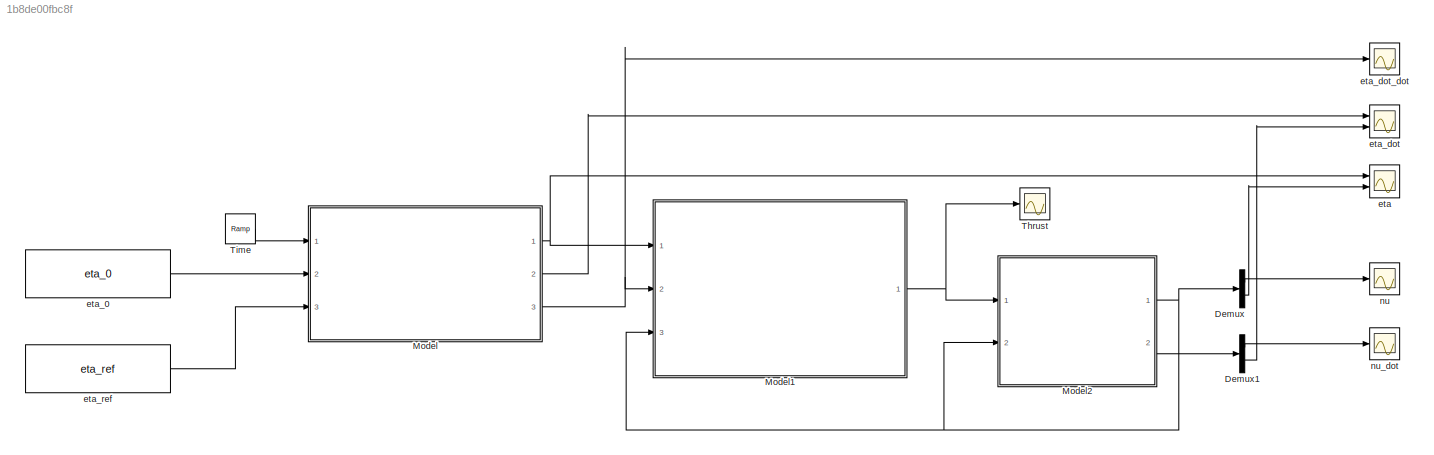
MODEL slx_1b8de00fbc8f
KIND model
CONFIG AbsTol = auto
CONFIG EnableMultiTasking = off
CONFIG FixedStep = auto
CONFIG MaxStep = auto
CONFIG MinStep = auto
CONFIG RelTol = 1e-3
CONFIG SampleTimeConstraint = Unconstrained
CONFIG Solver = VariableStepAuto
CONFIG SolverName = VariableStepAuto
CONFIG StartTime = 0.0
CONFIG StopTime = 120
BLOCK [Demux] Demux
  DisplayOption = bar
  Outputs = [6,6]
  Ports = [1, 2]
BLOCK [Demux] Demux1
  DisplayOption = bar
  Outputs = [6,6]
  Ports = [1, 2]
BLOCK [ModelReference] Model
  ModelNameDialog = trajectory_planner.slx
  ModelReferenceVersion = 1.30
  Ports = [3, 3]
BLOCK [ModelReference] Model1
  ModelNameDialog = controller.slx
  ModelReferenceVersion = 1.73
  Ports = [3, 1]
BLOCK [ModelReference] Model2
  ModelNameDialog = auv_model
  ModelReferenceVersion = 1.13
  Ports = [2, 2]
BLOCK [Scope] Thrust
  Floating = off
  NumInputPorts = 1
  Ports = [1]
  ScopeSpecificationString = Simulink.scopes.TimeScopeBlockCfg('CurrentConfiguration', extmgr.ConfigurationSet(extmgr.Configuration('Core','General UI',true),extmgr.Configuration('Core','Source UI',true),extmgr.Configuration('Sources','WiredSimulink',true,'DataLoggingVariableName','ScopeData1'),extmgr.Configuration('Visuals','Time Domain',true,'SerializedDisplays',{struct('MinYLimReal','-1071640.05538','MaxYLimReal','4471393....<+1487ch>
BLOCK [Reference] Time   REF=simulink/Sources/Ramp
  Ports = [0, 1]
  SourceBlock = simulink/Sources/Ramp
  SourceProductBaseCode = SL
  SourceProductName = Simulink
  SourceType = Ramp
BLOCK [Scope] eta
  Floating = off
  NumInputPorts = 2
  Ports = [2]
  ScopeSpecificationString = Simulink.scopes.TimeScopeBlockCfg('CurrentConfiguration', extmgr.ConfigurationSet(extmgr.Configuration('Core','General UI',true),extmgr.Configuration('Core','Source UI',true),extmgr.Configuration('Sources','WiredSimulink',true,'DataLoggingVariableName','ScopeData1'),extmgr.Configuration('Visuals','Time Domain',true,'SerializedDisplays',{struct('MinYLimReal','-0.87581','MaxYLimReal','7.88226','YLab...<+1576ch>
BLOCK [Constant] eta_0
  Value = eta_0
BLOCK [Scope] eta_dot
  Floating = off
  NumInputPorts = 2
  Ports = [2]
  ScopeSpecificationString = Simulink.scopes.TimeScopeBlockCfg('CurrentConfiguration', extmgr.ConfigurationSet(extmgr.Configuration('Core','General UI',true),extmgr.Configuration('Core','Source UI',true),extmgr.Configuration('Sources','WiredSimulink',true,'DataLoggingVariableName','ScopeData2'),extmgr.Configuration('Visuals','Time Domain',true,'SerializedDisplays',{struct('MinYLimReal','-0.1272','MaxYLimReal','1.0865','YLabel...<+1501ch>
BLOCK [Scope] eta_dot_dot
  Floating = off
  NumInputPorts = 1
  Ports = [1]
  ScopeSpecificationString = Simulink.scopes.TimeScopeBlockCfg('CurrentConfiguration', extmgr.ConfigurationSet(extmgr.Configuration('Core','General UI',true),extmgr.Configuration('Core','Source UI',true),extmgr.Configuration('Sources','WiredSimulink',true,'DataLoggingVariableName','ScopeData3'),extmgr.Configuration('Visuals','Time Domain',true,'SerializedDisplays',{struct('MinYLimReal','-0.01082','MaxYLimReal','0.01082','YLab...<+1457ch>
BLOCK [Constant] eta_ref
  Value = eta_ref
BLOCK [Scope] nu
  Floating = off
  NumInputPorts = 1
  Ports = [1]
  ScopeSpecificationString = Simulink.scopes.TimeScopeBlockCfg('CurrentConfiguration', extmgr.ConfigurationSet(extmgr.Configuration('Core','General UI',true),extmgr.Configuration('Core','Source UI',true),extmgr.Configuration('Sources','WiredSimulink',true,'DataLoggingVariableName','ScopeData4'),extmgr.Configuration('Visuals','Time Domain',true,'SerializedDisplays',{struct('MinYLimReal','-10.2444','MaxYLimReal','55.82872','YLa...<+1461ch>
BLOCK [Scope] nu_dot
  Floating = off
  NumInputPorts = 1
  Ports = [1]
  ScopeSpecificationString = Simulink.scopes.TimeScopeBlockCfg('CurrentConfiguration', extmgr.ConfigurationSet(extmgr.Configuration('Core','General UI',true),extmgr.Configuration('Core','Source UI',true),extmgr.Configuration('Sources','WiredSimulink',true),extmgr.Configuration('Visuals','Time Domain',true,'SerializedDisplays',{struct('MinYLimReal','-0.74555','MaxYLimReal','0.89478','YLabelReal','','MinYLimMag','0.00000','MaxY...<+1395ch>
LINE Demux1:1 -> nu_dot:1
LINE Demux1:2 -> eta_dot:2
LINE Demux:1 -> nu:1
LINE Demux:2 -> eta:2
NET Model1:1 -> Model2:1, Thrust:1
NET Model2:1 -> Demux:1, Model1:3, Model2:2
LINE Model2:2 -> Demux1:1
NET Model:1 -> Model1:1, eta:1
LINE Model:2 -> eta_dot:1
NET Model:3 -> Model1:2, eta_dot_dot:1
LINE Time :1 -> Model:1
LINE eta_0:1 -> Model:2
LINE eta_ref:1 -> Model:3
note: NET lines group one-source signal fan-out (src -> all destinations, sorted); 1:1 wires keep LINE
